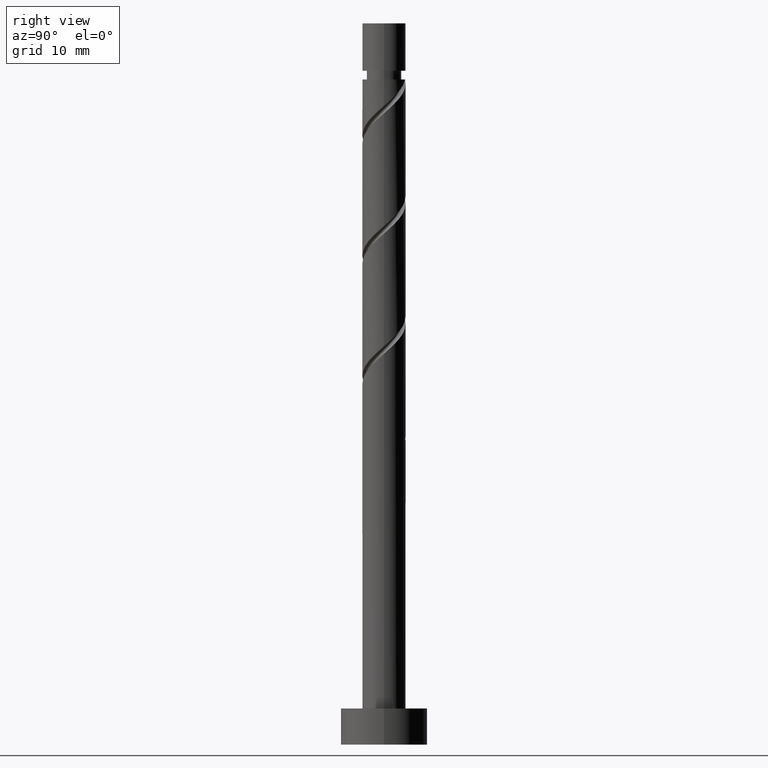
[diagram: clean part render]
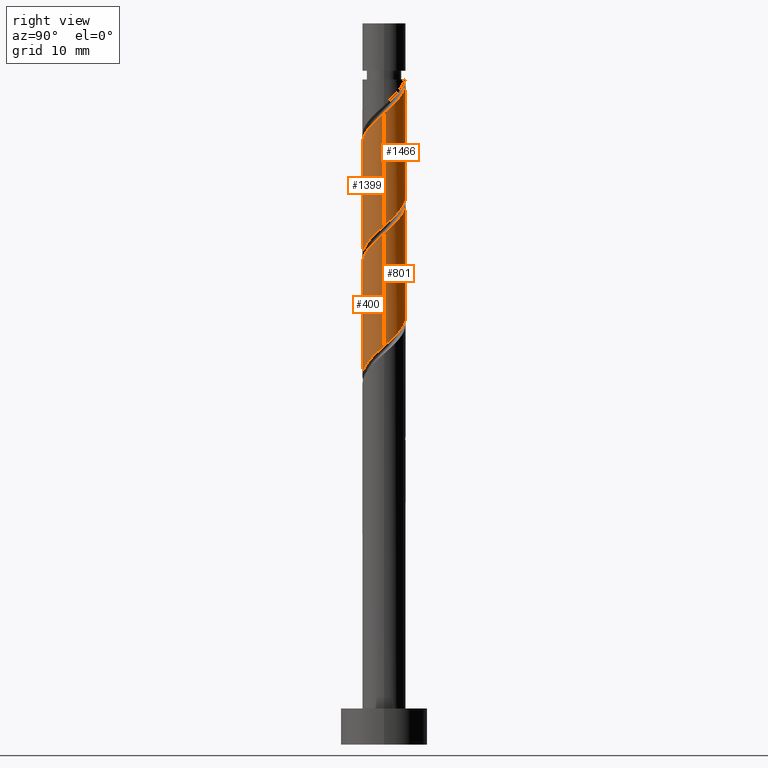
[diagram: same view with one multi-face feature highlighted, each face labeled with its STEP entity id]
A machine part, right view. The highlighted faces form ONE feature: a constant-radius fillet chain: 4 tangent blend faces with common blend radius 3 mm. The faces share edges in the B-rep.
Their STEP definitions:
[1] entity #400 (Cylinder):
#62 = CARTESIAN_POINT ( 'NONE',  ( -0.07859113898108563423, -3.045265878376719026, 51.02303792959357054 ) ) ;
#63 = DIRECTION ( 'NONE',  ( -1.000000000000000000, 0.000000000000000000, 0.000000000000000000 ) ) ;
#69 = CARTESIAN_POINT ( 'NONE',  ( -2.844610918258236421, -0.9529893618115772291, 47.78229718885284427 ) ) ;
#77 = CARTESIAN_POINT ( 'NONE',  ( 1.432472814177193854, -2.635910020589335545, 52.41192681848245627 ) ) ;
#103 = CARTESIAN_POINT ( 'NONE',  ( 2.844610918258239973, -0.9529893618115807818, 70.00451941107503728 ) ) ;
#118 = CARTESIAN_POINT ( 'NONE',  ( -2.247618455994267794, -1.987010638188424494, 64.44896385551949436 ) ) ;
#184 = CARTESIAN_POINT ( 'NONE',  ( -2.347118330779658368, -1.868431304950255223, 48.70822311477878230 ) ) ;
#216 = CARTESIAN_POINT ( 'NONE',  ( 3.000000000000001332, 6.050281451491994628E-16, 55.25759652161939073 ) ) ;
#225 = CARTESIAN_POINT ( 'NONE',  ( -0.4445498099232036426, -2.966879752618441390, 66.30081570737137042 ) ) ;
#261 = CARTESIAN_POINT ( 'NONE',  ( -2.999001447008927457, -0.07739716298663150418, 62.59711200366766093 ) ) ;
#328 = CARTESIAN_POINT ( 'NONE',  ( 1.566528632831732049, -2.558512857602707413, 68.15266755922321806 ) ) ;
#335 = CARTESIAN_POINT ( 'NONE',  ( 2.347118330779659701, -1.868431304950258554, 69.07859348514912767 ) ) ;
#349 = VERTEX_POINT ( 'NONE', #1397 ) ;
#364 = ORIENTED_EDGE ( 'NONE', *, *, #1378, .T. ) ;
#388 = CARTESIAN_POINT ( 'NONE',  ( -1.115393785546859640, -2.834734121623280423, 50.09711200366764672 ) ) ;
#396 = EDGE_CURVE ( 'NONE', #431, #654, #1102, .T. ) ;
#400 = ADVANCED_FACE ( 'NONE', ( #1450 ), #761, .T. ) ;
#419 = CARTESIAN_POINT ( 'NONE',  ( -1.566528632831730494, -2.558512857602702972, 49.63414904070470612 ) ) ;
#420 = CARTESIAN_POINT ( 'NONE',  ( 3.000000000000003109, -2.562032762792272016E-15, 70.86255341164185495 ) ) ;
#431 = VERTEX_POINT ( 'NONE', #420 ) ;
#433 = CARTESIAN_POINT ( 'NONE',  ( 0.07859113898108321949, -3.045265878376723023, 66.76377867033434654 ) ) ;
#449 = CARTESIAN_POINT ( 'NONE',  ( 2.676573181442717608, -1.454571016318390031, 69.54155644811210379 ) ) ;
#469 =( BOUNDED_CURVE ( )  B_SPLINE_CURVE ( 2, ( #987, #1194, #751, #1332, #961, #507, #638, #1093, #77, #968, #854, #62, #1420, #388, #419, #847, #184, #1316, #69, #1428, #861 ),
 .UNSPECIFIED., .F., .T. ) 
 B_SPLINE_CURVE_WITH_KNOTS ( ( 3, 2, 2, 2, 2, 2, 2, 2, 2, 2, 3 ),
 ( 0.8045248053855289516, 0.8055555555555555802, 0.8194444444444444198, 0.8333333333333333703, 0.8472222222222222099, 0.8611111111111111605, 0.8750000000000000000, 0.8888888888888888395, 0.9027777777777777901, 0.9166666666666666297, 0.9295248053855289516 ),
 .UNSPECIFIED. ) 
 CURVE ( )  GEOMETRIC_REPRESENTATION_ITEM ( )  RATIONAL_B_SPLINE_CURVE ( ( 0.9071930855141192573, 0.9080659294509669799, 0.9090909090909071733, 0.8952797754656418583, 0.9090909090909071733, 0.8952797754656418583, 0.9090909090909071733, 0.8952797754656418583, 0.9090909090909071733, 0.8952797754656418583, 0.9090909090909071733, 0.8952797754656418583, 0.9090909090909071733, 0.8952797754656418583, 0.9090909090909071733, 0.8952797754656418583, 0.9090909090909071733, 0.8952797754656418583, 0.9090909090909071733, 0.8963047551055820517, 0.9071930855141192573 ) ) 
 REPRESENTATION_ITEM ( '' )  );
#484 = ORIENTED_EDGE ( 'NONE', *, *, #396, .F. ) ;
#496 = EDGE_CURVE ( 'NONE', #349, #431, #1190, .T. ) ;
#505 = EDGE_LOOP ( 'NONE', ( #484, #798, #364, #881 ) ) ;
#507 = CARTESIAN_POINT ( 'NONE',  ( 2.597982042461628449, -1.590694862058334103, 53.80081570737134911 ) ) ;
#550 = CARTESIAN_POINT ( 'NONE',  ( 1.115393785546858751, -2.834734121623287084, 67.68970459626027036 ) ) ;
#583 = CARTESIAN_POINT ( 'NONE',  ( 3.000000000000001776, -0.4891631154613795274, 70.43263389927624019 ) ) ;
#632 = VECTOR ( 'NONE', #1119, 1000.000000000000000 ) ;
#638 = CARTESIAN_POINT ( 'NONE',  ( 2.247618455994263353, -1.987010638188423606, 53.33785274440840851 ) ) ;
#654 = VERTEX_POINT ( 'NONE', #216 ) ;
#665 = LINE ( 'NONE', #1095, #632 ) ;
#690 = CARTESIAN_POINT ( 'NONE',  ( -2.597982042461633778, -1.590694862058333880, 63.98600089255654666 ) ) ;
#751 = CARTESIAN_POINT ( 'NONE',  ( 2.999001447008924348, -0.07739716298663332217, 55.18970459626025615 ) ) ;
#754 = DIRECTION ( 'NONE',  ( -0.000000000000000000, -0.000000000000000000, -1.000000000000000000 ) ) ;
#761 = CYLINDRICAL_SURFACE ( 'NONE', #1381, 3.000000000000000444 ) ;
#798 = ORIENTED_EDGE ( 'NONE', *, *, #496, .F. ) ;
#821 = CARTESIAN_POINT ( 'NONE',  ( -3.000000000000000888, -1.874840301635173620E-15, 46.92426318828605503 ) ) ;
#832 = VERTEX_POINT ( 'NONE', #821 ) ;
#847 = CARTESIAN_POINT ( 'NONE',  ( -2.017663480116602237, -2.282291593582125966, 49.17118607774172290 ) ) ;
#854 = CARTESIAN_POINT ( 'NONE',  ( 0.4445498099232018108, -2.966879752618438282, 51.48600089255654666 ) ) ;
#861 = CARTESIAN_POINT ( 'NONE',  ( -3.000000000000000888, -1.874840301635173620E-15, 46.92426318828605503 ) ) ;
#862 = CARTESIAN_POINT ( 'NONE',  ( -3.000000000000003109, 2.614319145706400096E-15, 62.52922007830852635 ) ) ;
#876 = CARTESIAN_POINT ( 'NONE',  ( 3.000000000000000444, 3.673940397442060361E-16, 100.0000000000000000 ) ) ;
#881 = ORIENTED_EDGE ( 'NONE', *, *, #1174, .F. ) ;
#900 = VECTOR ( 'NONE', #1443, 1000.000000000000000 ) ;
#961 = CARTESIAN_POINT ( 'NONE',  ( 2.791668140702859180, -1.098448447668182615, 54.26377867033433233 ) ) ;
#968 = CARTESIAN_POINT ( 'NONE',  ( 0.9676907588274877847, -2.888493626860158425, 51.94896385551949436 ) ) ;
#987 = CARTESIAN_POINT ( 'NONE',  ( 3.000000000000001332, 6.050281451491993642E-16, 55.25759652161939783 ) ) ;
#988 = CARTESIAN_POINT ( 'NONE',  ( -2.985354238944096128, -0.6062020332780337917, 63.06007496663064416 ) ) ;
#1020 = CARTESIAN_POINT ( 'NONE',  ( -1.432472814177197185, -2.635910020589338210, 65.37488978144543239 ) ) ;
#1026 = CARTESIAN_POINT ( 'NONE',  ( 2.017663480116604457, -2.282291593582129963, 68.61563052218616576 ) ) ;
#1033 = CARTESIAN_POINT ( 'NONE',  ( 3.000000000000003109, -2.562032762792272016E-15, 70.86255341164185495 ) ) ;
#1093 = CARTESIAN_POINT ( 'NONE',  ( 1.897254869526898480, -2.383326414318513997, 52.87488978144543950 ) ) ;
#1095 = CARTESIAN_POINT ( 'NONE',  ( -3.000000000000000444, 0.000000000000000000, 100.0000000000000000 ) ) ;
#1102 = LINE ( 'NONE', #876, #900 ) ;
#1119 = DIRECTION ( 'NONE',  ( -0.000000000000000000, -0.000000000000000000, -1.000000000000000000 ) ) ;
#1125 = CARTESIAN_POINT ( 'NONE',  ( 0.5969924622639718459, -2.940000000000005276, 67.22674163329728003 ) ) ;
#1174 = EDGE_CURVE ( 'NONE', #654, #832, #469, .T. ) ;
#1190 =( BOUNDED_CURVE ( )  B_SPLINE_CURVE ( 2, ( #862, #1317, #261, #988, #1254, #690, #118, #1374, #1020, #1485, #225, #433, #1125, #550, #328, #1026, #335, #449, #103, #583, #1033 ),
 .UNSPECIFIED., .F., .T. ) 
 B_SPLINE_CURVE_WITH_KNOTS ( ( 3, 2, 2, 2, 2, 2, 2, 2, 2, 2, 3 ),
 ( 0.3045248053855290626, 0.3055555555555555802, 0.3194444444444444198, 0.3333333333333333703, 0.3472222222222222099, 0.3611111111111111605, 0.3750000000000000000, 0.3888888888888888395, 0.4027777777777777901, 0.4166666666666666297, 0.4295248053855288961 ),
 .UNSPECIFIED. ) 
 CURVE ( )  GEOMETRIC_REPRESENTATION_ITEM ( )  RATIONAL_B_SPLINE_CURVE ( ( 0.9071930855141251415, 0.9080659294509727530, 0.9090909090909128354, 0.8952797754656471874, 0.9090909090909128354, 0.8952797754656471874, 0.9090909090909128354, 0.8952797754656471874, 0.9090909090909128354, 0.8952797754656471874, 0.9090909090909128354, 0.8952797754656471874, 0.9090909090909128354, 0.8952797754656471874, 0.9090909090909128354, 0.8952797754656471874, 0.9090909090909128354, 0.8952797754656471874, 0.9090909090909128354, 0.8963047551055873807, 0.9071930855141248085 ) ) 
 REPRESENTATION_ITEM ( '' )  );
#1194 = CARTESIAN_POINT ( 'NONE',  ( 3.000000000000000888, -0.03870502299605926150, 55.22357914768703324 ) ) ;
#1254 = CARTESIAN_POINT ( 'NONE',  ( -2.791668140702863621, -1.098448447668183503, 63.52303792959358475 ) ) ;
#1316 = CARTESIAN_POINT ( 'NONE',  ( -2.676573181442713167, -1.454571016318386256, 48.24526015181579908 ) ) ;
#1317 = CARTESIAN_POINT ( 'NONE',  ( -3.000000000000003553, -0.03870502299606150276, 62.56323745224089095 ) ) ;
#1332 = CARTESIAN_POINT ( 'NONE',  ( 2.985354238944091243, -0.6062020332780340137, 54.72674163329728714 ) ) ;
#1374 = CARTESIAN_POINT ( 'NONE',  ( -1.897254869526902477, -2.383326414318516218, 64.91192681848247048 ) ) ;
#1378 = EDGE_CURVE ( 'NONE', #349, #832, #665, .T. ) ;
#1381 = AXIS2_PLACEMENT_3D ( 'NONE', #1457, #754, #63 ) ;
#1397 = CARTESIAN_POINT ( 'NONE',  ( -3.000000000000003109, 2.614319145706400096E-15, 62.52922007830852635 ) ) ;
#1420 = CARTESIAN_POINT ( 'NONE',  ( -0.5969924622639719569, -2.939999999999999947, 50.56007496663062284 ) ) ;
#1428 = CARTESIAN_POINT ( 'NONE',  ( -2.999999999999998224, -0.4891631154613743093, 47.35418270065166269 ) ) ;
#1443 = DIRECTION ( 'NONE',  ( -0.000000000000000000, -0.000000000000000000, -1.000000000000000000 ) ) ;
#1450 = FACE_OUTER_BOUND ( 'NONE', #505, .T. ) ;
#1457 = CARTESIAN_POINT ( 'NONE',  ( 0.000000000000000000, 0.000000000000000000, 100.0000000000000000 ) ) ;
#1485 = CARTESIAN_POINT ( 'NONE',  ( -0.9676907588274904493, -2.888493626860162866, 65.83785274440839430 ) ) ;
[2] entity #801 (Cylinder):
#12 = CYLINDRICAL_SURFACE ( 'NONE', #411, 3.000000000000000444 ) ;
#71 = CARTESIAN_POINT ( 'NONE',  ( 1.115393785546859196, 2.834734121623281311, 58.43044533700098242 ) ) ;
#78 = CARTESIAN_POINT ( 'NONE',  ( -0.4445498099232020883, 2.966879752618438282, 59.81933422588987526 ) ) ;
#88 = CARTESIAN_POINT ( 'NONE',  ( 2.597982042461633778, 1.590694862058332548, 72.31933422588986105 ) ) ;
#105 = CARTESIAN_POINT ( 'NONE',  ( -2.999001447008923904, 0.07739716298663212868, 63.52303792959358475 ) ) ;
#112 =( BOUNDED_CURVE ( )  B_SPLINE_CURVE ( 2, ( #830, #1138, #105, #572, #1333, #305, #1326, #1224, #883, #1110, #78, #768, #1215, #71, #982, #195, #949, #1182, #153, #657, #1209 ),
 .UNSPECIFIED., .F., .T. ) 
 B_SPLINE_CURVE_WITH_KNOTS ( ( 3, 2, 2, 2, 2, 2, 2, 2, 2, 2, 3 ),
 ( 0.6795248053855289516, 0.6805555555555555802, 0.6944444444444444198, 0.7083333333333333703, 0.7222222222222222099, 0.7361111111111111605, 0.7500000000000000000, 0.7638888888888888395, 0.7777777777777777901, 0.7916666666666666297, 0.8045248053855289516 ),
 .UNSPECIFIED. ) 
 CURVE ( )  GEOMETRIC_REPRESENTATION_ITEM ( )  RATIONAL_B_SPLINE_CURVE ( ( 0.9071930855141192573, 0.9080659294509669799, 0.9090909090909071733, 0.8952797754656418583, 0.9090909090909071733, 0.8952797754656418583, 0.9090909090909071733, 0.8952797754656418583, 0.9090909090909071733, 0.8952797754656418583, 0.9090909090909071733, 0.8952797754656418583, 0.9090909090909071733, 0.8952797754656418583, 0.9090909090909071733, 0.8952797754656418583, 0.9090909090909071733, 0.8952797754656418583, 0.9090909090909071733, 0.8963047551055820517, 0.9071930855141192573 ) ) 
 REPRESENTATION_ITEM ( '' )  );
#153 = CARTESIAN_POINT ( 'NONE',  ( 2.844610918258235532, 0.9529893618115785614, 56.11563052218617287 ) ) ;
#179 = CARTESIAN_POINT ( 'NONE',  ( -0.07859113898108403828, 3.045265878376722579, 75.09711200366764672 ) ) ;
#186 = CARTESIAN_POINT ( 'NONE',  ( -2.017663480116604457, 2.282291593582129519, 76.94896385551949436 ) ) ;
#195 = CARTESIAN_POINT ( 'NONE',  ( 2.017663480116602681, 2.282291593582123301, 57.50451941107505860 ) ) ;
#203 = CARTESIAN_POINT ( 'NONE',  ( -0.5969924622639714018, 2.940000000000005276, 75.56007496663062284 ) ) ;
#216 = CARTESIAN_POINT ( 'NONE',  ( 3.000000000000001332, 6.050281451491994628E-16, 55.25759652161939073 ) ) ;
#268 = CARTESIAN_POINT ( 'NONE',  ( 3.000000000000003997, 0.03870502299605543123, 70.89657078557422665 ) ) ;
#299 = CARTESIAN_POINT ( 'NONE',  ( 1.897254869526903143, 2.383326414318515774, 73.24526015181582750 ) ) ;
#305 = CARTESIAN_POINT ( 'NONE',  ( -2.597982042461628449, 1.590694862058331660, 62.13414904070469902 ) ) ;
#355 = EDGE_CURVE ( 'NONE', #372, #654, #112, .T. ) ;
#360 = CARTESIAN_POINT ( 'NONE',  ( -3.000000000000003997, -1.232464740118731699E-15, 79.19588674497518355 ) ) ;
#372 = VERTEX_POINT ( 'NONE', #727 ) ;
#374 = VECTOR ( 'NONE', #648, 1000.000000000000000 ) ;
#396 = EDGE_CURVE ( 'NONE', #431, #654, #1102, .T. ) ;
#411 = AXIS2_PLACEMENT_3D ( 'NONE', #597, #1179, #938 ) ;
#420 = CARTESIAN_POINT ( 'NONE',  ( 3.000000000000003109, -2.562032762792272016E-15, 70.86255341164185495 ) ) ;
#421 = CARTESIAN_POINT ( 'NONE',  ( 1.432472814177197185, 2.635910020589338210, 73.70822311477878941 ) ) ;
#425 = ORIENTED_EDGE ( 'NONE', *, *, #1258, .F. ) ;
#431 = VERTEX_POINT ( 'NONE', #420 ) ;
#434 = CARTESIAN_POINT ( 'NONE',  ( -1.566528632831732049, 2.558512857602707413, 76.48600089255653245 ) ) ;
#456 = EDGE_CURVE ( 'NONE', #890, #372, #491, .T. ) ;
#462 = ORIENTED_EDGE ( 'NONE', *, *, #396, .T. ) ;
#491 = LINE ( 'NONE', #1094, #374 ) ;
#542 = CARTESIAN_POINT ( 'NONE',  ( 2.791668140702863621, 1.098448447668182615, 71.85637126292692756 ) ) ;
#565 = ORIENTED_EDGE ( 'NONE', *, *, #355, .F. ) ;
#572 = CARTESIAN_POINT ( 'NONE',  ( -2.985354238944091243, 0.6062020332780333476, 63.06007496663061573 ) ) ;
#590 = FACE_OUTER_BOUND ( 'NONE', #812, .T. ) ;
#597 = CARTESIAN_POINT ( 'NONE',  ( 0.000000000000000000, 0.000000000000000000, 100.0000000000000000 ) ) ;
#648 = DIRECTION ( 'NONE',  ( -0.000000000000000000, -0.000000000000000000, -1.000000000000000000 ) ) ;
#654 = VERTEX_POINT ( 'NONE', #216 ) ;
#657 = CARTESIAN_POINT ( 'NONE',  ( 2.999999999999998224, 0.4891631154613726995, 55.68751603398500549 ) ) ;
#727 = CARTESIAN_POINT ( 'NONE',  ( -3.000000000000000888, -1.874840301635173620E-15, 63.59092985495274064 ) ) ;
#734 = CARTESIAN_POINT ( 'NONE',  ( 2.999001447008927457, 0.07739716298663182337, 70.93044533700098953 ) ) ;
#762 = CARTESIAN_POINT ( 'NONE',  ( -2.347118330779659701, 1.868431304950258554, 77.41192681848244206 ) ) ;
#768 = CARTESIAN_POINT ( 'NONE',  ( 0.07859113898108456564, 3.045265878376718138, 59.35637126292692756 ) ) ;
#769 = CARTESIAN_POINT ( 'NONE',  ( 0.4445498099232054190, 2.966879752618441390, 74.63414904070469902 ) ) ;
#779 =( BOUNDED_CURVE ( )  B_SPLINE_CURVE ( 2, ( #1066, #268, #734, #1327, #542, #88, #1465, #299, #421, #1005, #769, #179, #203, #1334, #434, #186, #762, #786, #1444, #1216, #1451 ),
 .UNSPECIFIED., .F., .T. ) 
 B_SPLINE_CURVE_WITH_KNOTS ( ( 3, 2, 2, 2, 2, 2, 2, 2, 2, 2, 3 ),
 ( 0.4295248053855288961, 0.4305555555555555802, 0.4444444444444444198, 0.4583333333333333703, 0.4722222222222222099, 0.4861111111111111605, 0.5000000000000000000, 0.5138888888888888395, 0.5277777777777777901, 0.5416666666666667407, 0.5545248053855291737 ),
 .UNSPECIFIED. ) 
 CURVE ( )  GEOMETRIC_REPRESENTATION_ITEM ( )  RATIONAL_B_SPLINE_CURVE ( ( 0.9071930855141248085, 0.9080659294509725310, 0.9090909090909128354, 0.8952797754656471874, 0.9090909090909128354, 0.8952797754656471874, 0.9090909090909128354, 0.8952797754656471874, 0.9090909090909128354, 0.8952797754656471874, 0.9090909090909128354, 0.8952797754656471874, 0.9090909090909128354, 0.8952797754656471874, 0.9090909090909128354, 0.8952797754656471874, 0.9090909090909128354, 0.8952797754656471874, 0.9090909090909128354, 0.8963047551055871587, 0.9071930855141252525 ) ) 
 REPRESENTATION_ITEM ( '' )  );
#786 = CARTESIAN_POINT ( 'NONE',  ( -2.676573181442717608, 1.454571016318389365, 77.87488978144544660 ) ) ;
#801 = ADVANCED_FACE ( 'NONE', ( #590 ), #12, .T. ) ;
#812 = EDGE_LOOP ( 'NONE', ( #425, #462, #565, #978 ) ) ;
#830 = CARTESIAN_POINT ( 'NONE',  ( -3.000000000000000888, -1.874840301635173620E-15, 63.59092985495274064 ) ) ;
#876 = CARTESIAN_POINT ( 'NONE',  ( 3.000000000000000444, 3.673940397442060361E-16, 100.0000000000000000 ) ) ;
#883 = CARTESIAN_POINT ( 'NONE',  ( -1.432472814177193854, 2.635910020589335545, 60.74526015181582039 ) ) ;
#890 = VERTEX_POINT ( 'NONE', #360 ) ;
#900 = VECTOR ( 'NONE', #1443, 1000.000000000000000 ) ;
#938 = DIRECTION ( 'NONE',  ( -1.000000000000000000, 0.000000000000000000, 0.000000000000000000 ) ) ;
#949 = CARTESIAN_POINT ( 'NONE',  ( 2.347118330779658368, 1.868431304950255001, 57.04155644811210379 ) ) ;
#978 = ORIENTED_EDGE ( 'NONE', *, *, #456, .F. ) ;
#982 = CARTESIAN_POINT ( 'NONE',  ( 1.566528632831732271, 2.558512857602702528, 57.96748237403802051 ) ) ;
#1005 = CARTESIAN_POINT ( 'NONE',  ( 0.9676907588274922256, 2.888493626860162422, 74.17118607774172290 ) ) ;
#1066 = CARTESIAN_POINT ( 'NONE',  ( 3.000000000000003109, -2.562032762792272016E-15, 70.86255341164185495 ) ) ;
#1094 = CARTESIAN_POINT ( 'NONE',  ( -3.000000000000000444, 0.000000000000000000, 100.0000000000000000 ) ) ;
#1102 = LINE ( 'NONE', #876, #900 ) ;
#1110 = CARTESIAN_POINT ( 'NONE',  ( -0.9676907588274885619, 2.888493626860157981, 60.28229718885283717 ) ) ;
#1138 = CARTESIAN_POINT ( 'NONE',  ( -3.000000000000000000, 0.03870502299605801944, 63.55691248102035473 ) ) ;
#1179 = DIRECTION ( 'NONE',  ( -0.000000000000000000, -0.000000000000000000, -1.000000000000000000 ) ) ;
#1182 = CARTESIAN_POINT ( 'NONE',  ( 2.676573181442712723, 1.454571016318386034, 56.57859348514913478 ) ) ;
#1209 = CARTESIAN_POINT ( 'NONE',  ( 3.000000000000001332, 6.050281451491993642E-16, 55.25759652161939783 ) ) ;
#1215 = CARTESIAN_POINT ( 'NONE',  ( 0.5969924622639724010, 2.939999999999999947, 58.89340829996396565 ) ) ;
#1216 = CARTESIAN_POINT ( 'NONE',  ( -3.000000000000005773, 0.4891631154613682586, 78.76596723260958299 ) ) ;
#1224 = CARTESIAN_POINT ( 'NONE',  ( -1.897254869526899368, 2.383326414318513109, 61.20822311477876809 ) ) ;
#1258 = EDGE_CURVE ( 'NONE', #431, #890, #779, .T. ) ;
#1326 = CARTESIAN_POINT ( 'NONE',  ( -2.247618455994264242, 1.987010638188422940, 61.67118607774173711 ) ) ;
#1327 = CARTESIAN_POINT ( 'NONE',  ( 2.985354238944096128, 0.6062020332780334586, 71.39340829996397986 ) ) ;
#1333 = CARTESIAN_POINT ( 'NONE',  ( -2.791668140702859180, 1.098448447668183281, 62.59711200366766093 ) ) ;
#1334 = CARTESIAN_POINT ( 'NONE',  ( -1.115393785546859862, 2.834734121623286640, 76.02303792959359896 ) ) ;
#1443 = DIRECTION ( 'NONE',  ( -0.000000000000000000, -0.000000000000000000, -1.000000000000000000 ) ) ;
#1444 = CARTESIAN_POINT ( 'NONE',  ( -2.844610918258239973, 0.9529893618115797826, 78.33785274440839430 ) ) ;
#1451 = CARTESIAN_POINT ( 'NONE',  ( -3.000000000000003997, -1.232464740118731699E-15, 79.19588674497518355 ) ) ;
#1465 = CARTESIAN_POINT ( 'NONE',  ( 2.247618455994267350, 1.987010638188425382, 72.78229718885285138 ) ) ;
[3] entity #1399 (Cylinder):
#1 = CARTESIAN_POINT ( 'NONE',  ( -2.597982042461633778, -1.590694862058333880, 80.65266755922324649 ) ) ;
#22 = CARTESIAN_POINT ( 'NONE',  ( 2.347118330779659701, -1.868431304950258554, 85.74526015181581329 ) ) ;
#59 = ORIENTED_EDGE ( 'NONE', *, *, #1404, .F. ) ;
#114 = CARTESIAN_POINT ( 'NONE',  ( -3.000000000000003553, -0.03870502299606537466, 79.22990411890754103 ) ) ;
#120 = CARTESIAN_POINT ( 'NONE',  ( -2.791668140702863621, -1.098448447668183503, 80.18970459626025615 ) ) ;
#193 = EDGE_CURVE ( 'NONE', #890, #1321, #1338, .T. ) ;
#210 = CARTESIAN_POINT ( 'NONE',  ( 3.000000000000001332, 6.050281451491993642E-16, 71.92426318828606213 ) ) ;
#234 = CARTESIAN_POINT ( 'NONE',  ( 2.844610918258239973, -0.9529893618115807818, 86.67118607774173711 ) ) ;
#252 = CARTESIAN_POINT ( 'NONE',  ( -2.844610918258236421, -0.9529893618115772291, 64.44896385551950857 ) ) ;
#288 = CARTESIAN_POINT ( 'NONE',  ( 3.000000000000001332, 6.050281451491994628E-16, 71.92426318828606213 ) ) ;
#313 = DIRECTION ( 'NONE',  ( -0.000000000000000000, -0.000000000000000000, -1.000000000000000000 ) ) ;
#321 = DIRECTION ( 'NONE',  ( -1.000000000000000000, 0.000000000000000000, 0.000000000000000000 ) ) ;
#336 = CARTESIAN_POINT ( 'NONE',  ( -0.07859113898108563423, -3.045265878376719026, 67.68970459626025615 ) ) ;
#360 = CARTESIAN_POINT ( 'NONE',  ( -3.000000000000003997, -1.232464740118731699E-15, 79.19588674497518355 ) ) ;
#366 = CARTESIAN_POINT ( 'NONE',  ( 2.999001447008924348, -0.07739716298663332217, 71.85637126292692756 ) ) ;
#372 = VERTEX_POINT ( 'NONE', #727 ) ;
#374 = VECTOR ( 'NONE', #648, 1000.000000000000000 ) ;
#381 = CARTESIAN_POINT ( 'NONE',  ( 0.9676907588274877847, -2.888493626860158425, 68.61563052218617997 ) ) ;
#452 = CARTESIAN_POINT ( 'NONE',  ( -2.247618455994267794, -1.987010638188424494, 81.11563052218617997 ) ) ;
#456 = EDGE_CURVE ( 'NONE', #890, #372, #491, .T. ) ;
#460 = CARTESIAN_POINT ( 'NONE',  ( 0.07859113898108321949, -3.045265878376723023, 83.43044533700103216 ) ) ;
#491 = LINE ( 'NONE', #1094, #374 ) ;
#501 = CARTESIAN_POINT ( 'NONE',  ( -1.115393785546859640, -2.834734121623280423, 66.76377867033433233 ) ) ;
#509 = EDGE_CURVE ( 'NONE', #1321, #1162, #1134, .T. ) ;
#533 =( BOUNDED_CURVE ( )  B_SPLINE_CURVE ( 2, ( #210, #675, #366, #1247, #1290, #937, #1063, #1273, #1367, #381, #1021, #336, #1047, #501, #953, #910, #1186, #717, #252, #946, #1480 ),
 .UNSPECIFIED., .F., .T. ) 
 B_SPLINE_CURVE_WITH_KNOTS ( ( 3, 2, 2, 2, 2, 2, 2, 2, 2, 2, 3 ),
 ( 0.5545248053855290626, 0.5555555555555555802, 0.5694444444444444198, 0.5833333333333333703, 0.5972222222222222099, 0.6111111111111111605, 0.6250000000000000000, 0.6388888888888888395, 0.6527777777777777901, 0.6666666666666666297, 0.6795248053855289516 ),
 .UNSPECIFIED. ) 
 CURVE ( )  GEOMETRIC_REPRESENTATION_ITEM ( )  RATIONAL_B_SPLINE_CURVE ( ( 0.9071930855141192573, 0.9080659294509669799, 0.9090909090909071733, 0.8952797754656418583, 0.9090909090909071733, 0.8952797754656418583, 0.9090909090909071733, 0.8952797754656418583, 0.9090909090909071733, 0.8952797754656418583, 0.9090909090909071733, 0.8952797754656418583, 0.9090909090909071733, 0.8952797754656418583, 0.9090909090909071733, 0.8952797754656418583, 0.9090909090909071733, 0.8952797754656418583, 0.9090909090909071733, 0.8963047551055820517, 0.9071930855141192573 ) ) 
 REPRESENTATION_ITEM ( '' )  );
#551 = CYLINDRICAL_SURFACE ( 'NONE', #1347, 3.000000000000000444 ) ;
#592 = VECTOR ( 'NONE', #313, 1000.000000000000000 ) ;
#648 = DIRECTION ( 'NONE',  ( -0.000000000000000000, -0.000000000000000000, -1.000000000000000000 ) ) ;
#675 = CARTESIAN_POINT ( 'NONE',  ( 3.000000000000000888, -0.03870502299606342483, 71.89024581435369043 ) ) ;
#692 = CARTESIAN_POINT ( 'NONE',  ( 0.5969924622639718459, -2.940000000000005276, 83.89340829996395144 ) ) ;
#713 = CARTESIAN_POINT ( 'NONE',  ( -2.985354238944096128, -0.6062020332780337917, 79.72674163329729424 ) ) ;
#717 = CARTESIAN_POINT ( 'NONE',  ( -2.676573181442713167, -1.454571016318386256, 64.91192681848245627 ) ) ;
#727 = CARTESIAN_POINT ( 'NONE',  ( -3.000000000000000888, -1.874840301635173620E-15, 63.59092985495274064 ) ) ;
#803 = CARTESIAN_POINT ( 'NONE',  ( -1.897254869526902477, -2.383326414318516218, 81.57859348514914188 ) ) ;
#816 = CARTESIAN_POINT ( 'NONE',  ( -0.9676907588274904493, -2.888493626860162866, 82.50451941107507992 ) ) ;
#858 = ORIENTED_EDGE ( 'NONE', *, *, #193, .F. ) ;
#884 = CARTESIAN_POINT ( 'NONE',  ( 3.000000000000003553, 1.292220606306306339E-15, 87.52922007830849793 ) ) ;
#890 = VERTEX_POINT ( 'NONE', #360 ) ;
#894 = CARTESIAN_POINT ( 'NONE',  ( 0.000000000000000000, 0.000000000000000000, 100.0000000000000000 ) ) ;
#910 = CARTESIAN_POINT ( 'NONE',  ( -2.017663480116602237, -2.282291593582125966, 65.83785274440839430 ) ) ;
#919 = CARTESIAN_POINT ( 'NONE',  ( 1.115393785546858751, -2.834734121623287084, 84.35637126292694177 ) ) ;
#933 = CARTESIAN_POINT ( 'NONE',  ( 2.676573181442717608, -1.454571016318390031, 86.20822311477877520 ) ) ;
#937 = CARTESIAN_POINT ( 'NONE',  ( 2.597982042461628449, -1.590694862058334103, 70.46748237403802761 ) ) ;
#946 = CARTESIAN_POINT ( 'NONE',  ( -2.999999999999998224, -0.4891631154613743093, 64.02084936731833409 ) ) ;
#953 = CARTESIAN_POINT ( 'NONE',  ( -1.566528632831730494, -2.558512857602702972, 66.30081570737137042 ) ) ;
#972 = EDGE_LOOP ( 'NONE', ( #1462, #858, #1265, #59 ) ) ;
#983 = FACE_OUTER_BOUND ( 'NONE', #972, .T. ) ;
#1021 = CARTESIAN_POINT ( 'NONE',  ( 0.4445498099232018108, -2.966879752618438282, 68.15266755922321806 ) ) ;
#1023 = CARTESIAN_POINT ( 'NONE',  ( -0.4445498099232036426, -2.966879752618441390, 82.96748237403802761 ) ) ;
#1028 = CARTESIAN_POINT ( 'NONE',  ( -2.999001447008927457, -0.07739716298663150418, 79.26377867033430391 ) ) ;
#1047 = CARTESIAN_POINT ( 'NONE',  ( -0.5969924622639719569, -2.939999999999999947, 67.22674163329729424 ) ) ;
#1050 = CARTESIAN_POINT ( 'NONE',  ( -1.432472814177197185, -2.635910020589338210, 82.04155644811208958 ) ) ;
#1063 = CARTESIAN_POINT ( 'NONE',  ( 2.247618455994263353, -1.987010638188423606, 70.00451941107507992 ) ) ;
#1094 = CARTESIAN_POINT ( 'NONE',  ( -3.000000000000000444, 0.000000000000000000, 100.0000000000000000 ) ) ;
#1134 = LINE ( 'NONE', #1261, #592 ) ;
#1147 = CARTESIAN_POINT ( 'NONE',  ( 3.000000000000007105, -0.4891631154613656496, 87.09930056594294001 ) ) ;
#1162 = VERTEX_POINT ( 'NONE', #288 ) ;
#1186 = CARTESIAN_POINT ( 'NONE',  ( -2.347118330779658368, -1.868431304950255223, 65.37488978144544660 ) ) ;
#1247 = CARTESIAN_POINT ( 'NONE',  ( 2.985354238944091243, -0.6062020332780340137, 71.39340829996396565 ) ) ;
#1256 = CARTESIAN_POINT ( 'NONE',  ( 1.566528632831732049, -2.558512857602707413, 84.81933422588986105 ) ) ;
#1261 = CARTESIAN_POINT ( 'NONE',  ( 3.000000000000000444, 3.673940397442060361E-16, 100.0000000000000000 ) ) ;
#1263 = CARTESIAN_POINT ( 'NONE',  ( 2.017663480116604457, -2.282291593582129963, 85.28229718885285138 ) ) ;
#1265 = ORIENTED_EDGE ( 'NONE', *, *, #456, .T. ) ;
#1273 = CARTESIAN_POINT ( 'NONE',  ( 1.897254869526898480, -2.383326414318513997, 69.54155644811210379 ) ) ;
#1290 = CARTESIAN_POINT ( 'NONE',  ( 2.791668140702859180, -1.098448447668182615, 70.93044533700101795 ) ) ;
#1321 = VERTEX_POINT ( 'NONE', #884 ) ;
#1338 =( BOUNDED_CURVE ( )  B_SPLINE_CURVE ( 2, ( #1369, #114, #1028, #713, #120, #1, #452, #803, #1050, #816, #1023, #460, #692, #919, #1256, #1263, #22, #933, #234, #1147, #1376 ),
 .UNSPECIFIED., .F., .T. ) 
 B_SPLINE_CURVE_WITH_KNOTS ( ( 3, 2, 2, 2, 2, 2, 2, 2, 2, 2, 3 ),
 ( 0.5545248053855291737, 0.5555555555555555802, 0.5694444444444444198, 0.5833333333333332593, 0.5972222222222222099, 0.6111111111111111605, 0.6250000000000000000, 0.6388888888888888395, 0.6527777777777777901, 0.6666666666666667407, 0.6795248053855292847 ),
 .UNSPECIFIED. ) 
 CURVE ( )  GEOMETRIC_REPRESENTATION_ITEM ( )  RATIONAL_B_SPLINE_CURVE ( ( 0.9071930855141252525, 0.9080659294509728641, 0.9090909090909128354, 0.8952797754656471874, 0.9090909090909128354, 0.8952797754656471874, 0.9090909090909128354, 0.8952797754656471874, 0.9090909090909128354, 0.8952797754656471874, 0.9090909090909128354, 0.8952797754656471874, 0.9090909090909128354, 0.8952797754656471874, 0.9090909090909128354, 0.8952797754656471874, 0.9090909090909128354, 0.8952797754656471874, 0.9090909090909128354, 0.8963047551055870477, 0.9071930855141254746 ) ) 
 REPRESENTATION_ITEM ( '' )  );
#1347 = AXIS2_PLACEMENT_3D ( 'NONE', #894, #1352, #321 ) ;
#1352 = DIRECTION ( 'NONE',  ( -0.000000000000000000, -0.000000000000000000, -1.000000000000000000 ) ) ;
#1367 = CARTESIAN_POINT ( 'NONE',  ( 1.432472814177193854, -2.635910020589335545, 69.07859348514912767 ) ) ;
#1369 = CARTESIAN_POINT ( 'NONE',  ( -3.000000000000003997, -1.232464740118731699E-15, 79.19588674497518355 ) ) ;
#1376 = CARTESIAN_POINT ( 'NONE',  ( 3.000000000000003553, 1.292220606306306339E-15, 87.52922007830849793 ) ) ;
#1399 = ADVANCED_FACE ( 'NONE', ( #983 ), #551, .T. ) ;
#1404 = EDGE_CURVE ( 'NONE', #1162, #372, #533, .T. ) ;
#1462 = ORIENTED_EDGE ( 'NONE', *, *, #509, .F. ) ;
#1480 = CARTESIAN_POINT ( 'NONE',  ( -3.000000000000000888, -1.874840301635173620E-15, 63.59092985495274064 ) ) ;
[4] entity #1466 (Cylinder):
#20 = CARTESIAN_POINT ( 'NONE',  ( 0.5969924622639724010, 2.939999999999999947, 75.56007496663063705 ) ) ;
#27 = CARTESIAN_POINT ( 'NONE',  ( -0.4445498099232020883, 2.966879752618438282, 76.48600089255654666 ) ) ;
#35 = CARTESIAN_POINT ( 'NONE',  ( -3.000000000000000000, 0.03870502299605783902, 80.22357914768703324 ) ) ;
#42 = CARTESIAN_POINT ( 'NONE',  ( -1.432472814177193854, 2.635910020589335545, 77.41192681848247048 ) ) ;
#64 = CARTESIAN_POINT ( 'NONE',  ( -3.000000000000001776, 0.000000000000000000, 92.22674163329729424 ) ) ;
#93 = VERTEX_POINT ( 'NONE', #660 ) ;
#125 = CARTESIAN_POINT ( 'NONE',  ( -2.985354238944091243, 0.6062020332780333476, 79.72674163329729424 ) ) ;
#133 = DIRECTION ( 'NONE',  ( -1.000000000000000000, 0.000000000000000000, 0.000000000000000000 ) ) ;
#142 = CARTESIAN_POINT ( 'NONE',  ( -3.000000000000000000, 1.979413067463428992E-15, 80.25759652161940494 ) ) ;
#144 = CARTESIAN_POINT ( 'NONE',  ( 2.999001447008927457, 0.07739716298663182337, 87.59711200366764672 ) ) ;
#149 = CYLINDRICAL_SURFACE ( 'NONE', #245, 3.000000000000000444 ) ;
#150 = CARTESIAN_POINT ( 'NONE',  ( -2.597982042461628449, 1.590694862058331660, 78.80081570737137042 ) ) ;
#178 = CARTESIAN_POINT ( 'NONE',  ( 0.000000000000000000, 0.000000000000000000, 92.22674163329729424 ) ) ;
#185 = CARTESIAN_POINT ( 'NONE',  ( 1.897254869526903143, 2.383326414318515774, 89.91192681848248469 ) ) ;
#200 = ORIENTED_EDGE ( 'NONE', *, *, #414, .T. ) ;
#227 =( BOUNDED_CURVE ( )  B_SPLINE_CURVE ( 2, ( #142, #35, #931, #125, #1382, #150, #1291, #612, #42, #1299, #27, #502, #20, #488, #479, #238, #702, #1394, #718, #351, #1275 ),
 .UNSPECIFIED., .F., .T. ) 
 B_SPLINE_CURVE_WITH_KNOTS ( ( 3, 2, 2, 2, 2, 2, 2, 2, 2, 2, 3 ),
 ( 0.4295248053855289516, 0.4305555555555555802, 0.4444444444444444198, 0.4583333333333333148, 0.4722222222222222099, 0.4861111111111111049, 0.5000000000000000000, 0.5138888888888888395, 0.5277777777777777901, 0.5416666666666666297, 0.5545248053855290626 ),
 .UNSPECIFIED. ) 
 CURVE ( )  GEOMETRIC_REPRESENTATION_ITEM ( )  RATIONAL_B_SPLINE_CURVE ( ( 0.9071930855141192573, 0.9080659294509669799, 0.9090909090909071733, 0.8952797754656418583, 0.9090909090909071733, 0.8952797754656418583, 0.9090909090909071733, 0.8952797754656418583, 0.9090909090909071733, 0.8952797754656418583, 0.9090909090909071733, 0.8952797754656418583, 0.9090909090909071733, 0.8952797754656418583, 0.9090909090909071733, 0.8952797754656418583, 0.9090909090909071733, 0.8952797754656418583, 0.9090909090909071733, 0.8963047551055818296, 0.9071930855141192573 ) ) 
 REPRESENTATION_ITEM ( '' )  );
#230 = ORIENTED_EDGE ( 'NONE', *, *, #906, .F. ) ;
#238 = CARTESIAN_POINT ( 'NONE',  ( 2.017663480116602681, 2.282291593582123301, 74.17118607774173711 ) ) ;
#245 = AXIS2_PLACEMENT_3D ( 'NONE', #486, #1298, #133 ) ;
#264 =( BOUNDED_CURVE ( )  B_SPLINE_CURVE ( 2, ( #1341, #289, #144, #427, #721, #1175, #1058, #185, #606, #956, #522, #614, #1067 ),
 .UNSPECIFIED., .F., .T. ) 
 B_SPLINE_CURVE_WITH_KNOTS ( ( 3, 2, 2, 2, 2, 2, 3 ),
 ( 0.6795248053855292847, 0.6805555555555555802, 0.6944444444444444198, 0.7083333333333332593, 0.7222222222222222099, 0.7361111111111111605, 0.7500000000000000000 ),
 .UNSPECIFIED. ) 
 CURVE ( )  GEOMETRIC_REPRESENTATION_ITEM ( )  RATIONAL_B_SPLINE_CURVE ( ( 0.9071930855141254746, 0.9080659294509729751, 0.9090909090909128354, 0.8952797754656471874, 0.9090909090909128354, 0.8952797754656471874, 0.9090909090909128354, 0.8952797754656471874, 0.9090909090909128354, 0.8952797754656471874, 0.9090909090909128354, 0.8952797754656471874, 0.9090909090909128354 ) ) 
 REPRESENTATION_ITEM ( '' )  );
#288 = CARTESIAN_POINT ( 'NONE',  ( 3.000000000000001332, 6.050281451491994628E-16, 71.92426318828606213 ) ) ;
#289 = CARTESIAN_POINT ( 'NONE',  ( 3.000000000000003553, 0.03870502299606973923, 87.56323745224086963 ) ) ;
#298 = DIRECTION ( 'NONE',  ( -0.000000000000000000, -0.000000000000000000, -1.000000000000000000 ) ) ;
#304 = CARTESIAN_POINT ( 'NONE',  ( -3.000000000000000000, 1.979413067463429387E-15, 80.25759652161940494 ) ) ;
#313 = DIRECTION ( 'NONE',  ( -0.000000000000000000, -0.000000000000000000, -1.000000000000000000 ) ) ;
#351 = CARTESIAN_POINT ( 'NONE',  ( 3.000000000000000000, 0.4891631154613687027, 72.35418270065166269 ) ) ;
#383 = DIRECTION ( 'NONE',  ( -0.000000000000000000, -0.000000000000000000, -1.000000000000000000 ) ) ;
#414 = EDGE_CURVE ( 'NONE', #1348, #93, #1019, .T. ) ;
#427 = CARTESIAN_POINT ( 'NONE',  ( 2.985354238944096128, 0.6062020332780334586, 88.06007496663062284 ) ) ;
#445 = EDGE_CURVE ( 'NONE', #1321, #93, #264, .T. ) ;
#479 = CARTESIAN_POINT ( 'NONE',  ( 1.566528632831732271, 2.558512857602702528, 74.63414904070469902 ) ) ;
#486 = CARTESIAN_POINT ( 'NONE',  ( 0.000000000000000000, 0.000000000000000000, 100.0000000000000000 ) ) ;
#488 = CARTESIAN_POINT ( 'NONE',  ( 1.115393785546859196, 2.834734121623281311, 75.09711200366766093 ) ) ;
#495 = CARTESIAN_POINT ( 'NONE',  ( -3.000000000000000444, 0.000000000000000000, 100.0000000000000000 ) ) ;
#502 = CARTESIAN_POINT ( 'NONE',  ( 0.07859113898108456564, 3.045265878376718138, 76.02303792959357054 ) ) ;
#509 = EDGE_CURVE ( 'NONE', #1321, #1162, #1134, .T. ) ;
#522 = CARTESIAN_POINT ( 'NONE',  ( 0.4445498099232054190, 2.966879752618441390, 91.30081570737135621 ) ) ;
#592 = VECTOR ( 'NONE', #313, 1000.000000000000000 ) ;
#606 = CARTESIAN_POINT ( 'NONE',  ( 1.432472814177197185, 2.635910020589338210, 90.37488978144543239 ) ) ;
#608 = VECTOR ( 'NONE', #383, 1000.000000000000000 ) ;
#612 = CARTESIAN_POINT ( 'NONE',  ( -1.897254869526899368, 2.383326414318513109, 77.87488978144543239 ) ) ;
#614 = CARTESIAN_POINT ( 'NONE',  ( -0.07859113898108403828, 3.045265878376722579, 91.76377867033433233 ) ) ;
#628 = EDGE_LOOP ( 'NONE', ( #1045, #1090, #230, #898, #200 ) ) ;
#660 = CARTESIAN_POINT ( 'NONE',  ( -0.5969924622639674050, 2.939999999999966196, 92.22674163329728003 ) ) ;
#702 = CARTESIAN_POINT ( 'NONE',  ( 2.347118330779658368, 1.868431304950255001, 73.70822311477876099 ) ) ;
#718 = CARTESIAN_POINT ( 'NONE',  ( 2.844610918258235532, 0.9529893618115785614, 72.78229718885283717 ) ) ;
#721 = CARTESIAN_POINT ( 'NONE',  ( 2.791668140702863621, 1.098448447668182615, 88.52303792959358475 ) ) ;
#725 = LINE ( 'NONE', #495, #608 ) ;
#874 = AXIS2_PLACEMENT_3D ( 'NONE', #178, #298, #1406 ) ;
#884 = CARTESIAN_POINT ( 'NONE',  ( 3.000000000000003553, 1.292220606306306339E-15, 87.52922007830849793 ) ) ;
#898 = ORIENTED_EDGE ( 'NONE', *, *, #1036, .F. ) ;
#906 = EDGE_CURVE ( 'NONE', #1212, #1162, #227, .T. ) ;
#931 = CARTESIAN_POINT ( 'NONE',  ( -2.999001447008923904, 0.07739716298663212868, 80.18970459626027036 ) ) ;
#956 = CARTESIAN_POINT ( 'NONE',  ( 0.9676907588274922256, 2.888493626860162422, 90.83785274440839430 ) ) ;
#1019 = CIRCLE ( 'NONE', #874, 3.000000000000001776 ) ;
#1036 = EDGE_CURVE ( 'NONE', #1348, #1212, #725, .T. ) ;
#1045 = ORIENTED_EDGE ( 'NONE', *, *, #445, .F. ) ;
#1058 = CARTESIAN_POINT ( 'NONE',  ( 2.247618455994267350, 1.987010638188425382, 89.44896385551950857 ) ) ;
#1067 = CARTESIAN_POINT ( 'NONE',  ( -0.5969924622639674050, 2.939999999999966196, 92.22674163329729424 ) ) ;
#1090 = ORIENTED_EDGE ( 'NONE', *, *, #509, .T. ) ;
#1134 = LINE ( 'NONE', #1261, #592 ) ;
#1162 = VERTEX_POINT ( 'NONE', #288 ) ;
#1164 = FACE_OUTER_BOUND ( 'NONE', #628, .T. ) ;
#1175 = CARTESIAN_POINT ( 'NONE',  ( 2.597982042461633778, 1.590694862058332548, 88.98600089255656087 ) ) ;
#1212 = VERTEX_POINT ( 'NONE', #304 ) ;
#1261 = CARTESIAN_POINT ( 'NONE',  ( 3.000000000000000444, 3.673940397442060361E-16, 100.0000000000000000 ) ) ;
#1275 = CARTESIAN_POINT ( 'NONE',  ( 3.000000000000001332, 6.050281451491993642E-16, 71.92426318828606213 ) ) ;
#1291 = CARTESIAN_POINT ( 'NONE',  ( -2.247618455994264242, 1.987010638188422940, 78.33785274440839430 ) ) ;
#1298 = DIRECTION ( 'NONE',  ( -0.000000000000000000, -0.000000000000000000, -1.000000000000000000 ) ) ;
#1299 = CARTESIAN_POINT ( 'NONE',  ( -0.9676907588274885619, 2.888493626860157981, 76.94896385551950857 ) ) ;
#1321 = VERTEX_POINT ( 'NONE', #884 ) ;
#1341 = CARTESIAN_POINT ( 'NONE',  ( 3.000000000000003553, 1.292220606306306339E-15, 87.52922007830849793 ) ) ;
#1348 = VERTEX_POINT ( 'NONE', #64 ) ;
#1382 = CARTESIAN_POINT ( 'NONE',  ( -2.791668140702859180, 1.098448447668183281, 79.26377867033430391 ) ) ;
#1394 = CARTESIAN_POINT ( 'NONE',  ( 2.676573181442712723, 1.454571016318386034, 73.24526015181582750 ) ) ;
#1406 = DIRECTION ( 'NONE',  ( -1.000000000000000000, 0.000000000000000000, 0.000000000000000000 ) ) ;
#1466 = ADVANCED_FACE ( 'NONE', ( #1164 ), #149, .T. ) ;